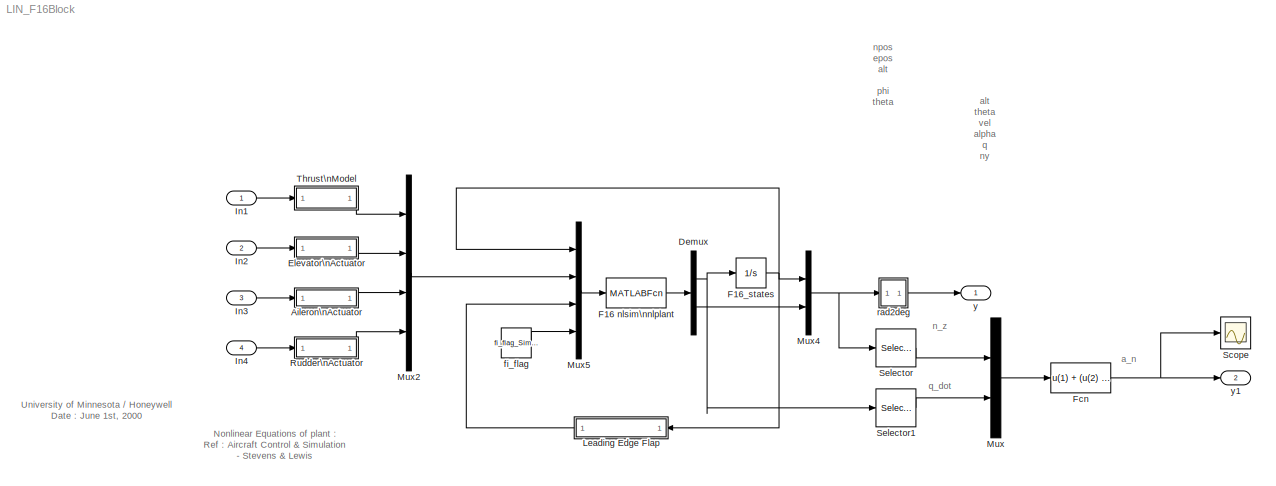
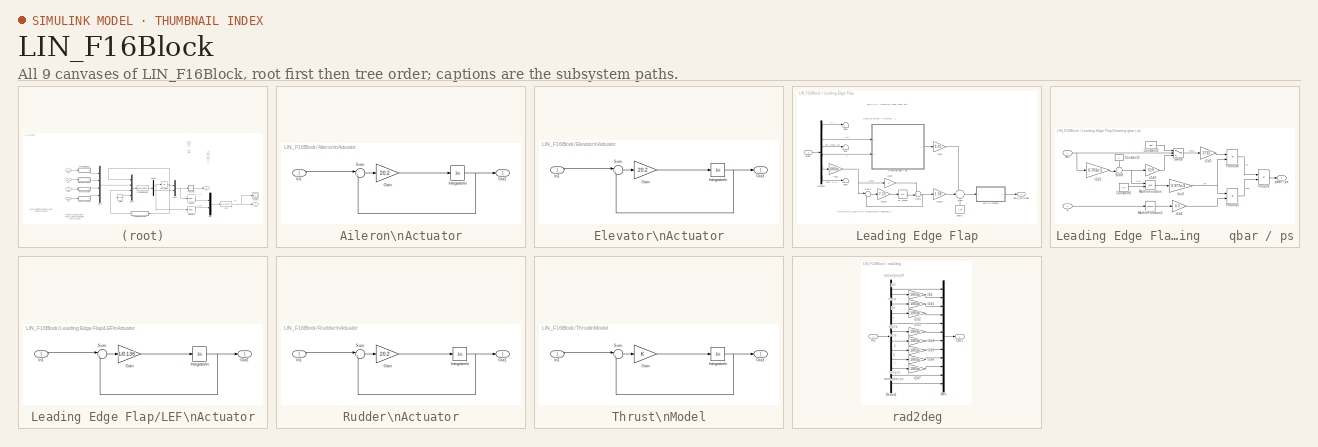
[diagram: thumbnail index - all 9 canvases of the model, root first then tree order]
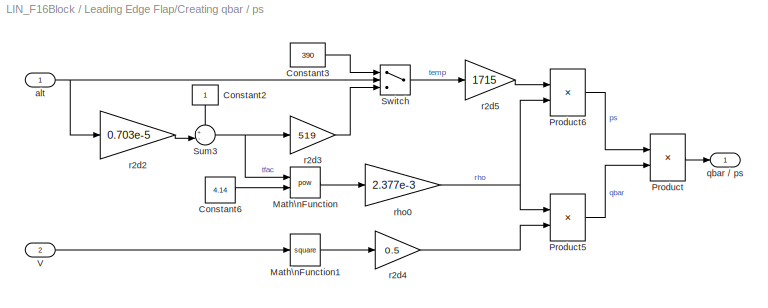
MODEL LIN_F16Block
KIND model
BLOCK [SubSystem] Aileron\nActuator
  AncestorBlock = F16_Actuator_Library/Aileron\nActuator
  Ports = [1, 1]
  RequestExecContextInheritance = off
  SID = 5
BLOCK [Gain] Aileron\nActuator/Gain
  Gain = 20.2
  SID = 5:2
BLOCK [Inport] Aileron\nActuator/In1
  IconDisplay = Port number
  SID = 5:1
BLOCK [Integrator] Aileron\nActuator/Integrator\n
  InitialCondition = trim_control_lin(2)
  LowerSaturationLimit = -21.5
  Ports = [1, 1]
  SID = 5:3
  UpperSaturationLimit = 21.5
BLOCK [Outport] Aileron\nActuator/Out1
  IconDisplay = Port number
  SID = 5:5
  VectorParamsAs1DForOutWhenUnconnected = off
BLOCK [Sum] Aileron\nActuator/Sum
  IconShape = round
  Inputs = |+-
  Ports = [2, 1]
  SID = 5:4
BLOCK [Demux] Demux
  Outputs = [12 6]
  Ports = [1, 2]
  SID = 6
BLOCK [SubSystem] Elevator\nActuator
  AncestorBlock = F16_Actuator_Library/Elevator\nActuator
  Ports = [1, 1]
  RequestExecContextInheritance = off
  SID = 7
BLOCK [Gain] Elevator\nActuator/Gain
  Gain = 20.2
  SID = 7:2
BLOCK [Inport] Elevator\nActuator/In1
  IconDisplay = Port number
  SID = 7:1
BLOCK [Integrator] Elevator\nActuator/Integrator\n
  InitialCondition = trim_control_lin(1)
  LowerSaturationLimit = -25
  Ports = [1, 1]
  SID = 7:3
  UpperSaturationLimit = 25
BLOCK [Outport] Elevator\nActuator/Out1
  IconDisplay = Port number
  SID = 7:5
  VectorParamsAs1DForOutWhenUnconnected = off
BLOCK [Sum] Elevator\nActuator/Sum
  IconShape = round
  Inputs = |+-
  Ports = [2, 1]
  SID = 7:4
BLOCK [MATLABFcn] F16 nlsim\nnlplant
  MATLABFcn = nlplant
  OutputDimensions = 18
  OutputSignalType = real
  Ports = [1, 1]
  SID = 8
BLOCK [Integrator] F16_states
  InitialCondition = trim_state_lin
  Ports = [1, 1]
  SID = 9
BLOCK [Fcn] Fcn
  Expr = u(1) + (u(2) * (x_a/g_d))
  SID = 91
BLOCK [Inport] In1
  IconDisplay = Port number
  SID = 1
BLOCK [Inport] In2
  IconDisplay = Port number
  Port = 2
  SID = 2
BLOCK [Inport] In3
  IconDisplay = Port number
  Port = 3
  SID = 3
BLOCK [Inport] In4
  IconDisplay = Port number
  Port = 4
  SID = 4
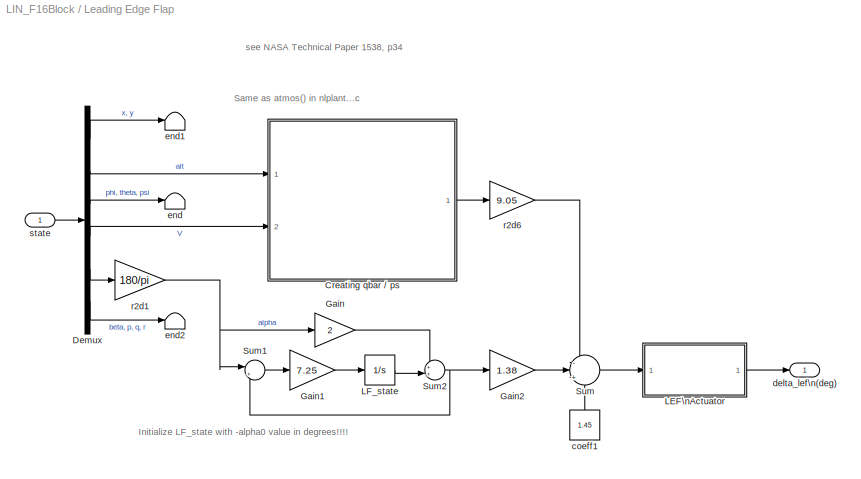
BLOCK [SubSystem] Leading Edge Flap
  Ports = [1, 1]
  RequestExecContextInheritance = off
  SID = 10
BLOCK [SubSystem] Leading Edge Flap/Creating    qbar // ps
  Ports = [2, 1]
  RequestExecContextInheritance = off
  SID = 12
BLOCK [Constant] Leading Edge Flap/Creating    qbar // ps/Constant2
  SID = 15
BLOCK [Constant] Leading Edge Flap/Creating    qbar // ps/Constant3
  SID = 16
  Value = 390
BLOCK [Constant] Leading Edge Flap/Creating    qbar // ps/Constant6
  SID = 17
  Value = 4.14
BLOCK [Math] Leading Edge Flap/Creating    qbar // ps/Math\nFunction
  Operator = pow
  Ports = [2, 1]
  SID = 18
BLOCK [Math] Leading Edge Flap/Creating    qbar // ps/Math\nFunction1
  Operator = square
  Ports = [1, 1]
  SID = 19
BLOCK [Product] Leading Edge Flap/Creating    qbar // ps/Product
  Inputs = /*
  Ports = [2, 1]
  RndMeth = Floor
  SID = 20
BLOCK [Product] Leading Edge Flap/Creating    qbar // ps/Product5
  Inputs = **
  Ports = [2, 1]
  RndMeth = Floor
  SID = 21
BLOCK [Product] Leading Edge Flap/Creating    qbar // ps/Product6
  Inputs = **
  Ports = [2, 1]
  RndMeth = Floor
  SID = 22
BLOCK [Sum] Leading Edge Flap/Creating    qbar // ps/Sum3
  IconShape = round
  Inputs = +-|
  Ports = [2, 1]
  SID = 23
BLOCK [Switch] Leading Edge Flap/Creating    qbar // ps/Switch
  SID = 24
  Threshold = 35000
BLOCK [Inport] Leading Edge Flap/Creating    qbar // ps/V
  IconDisplay = Port number
  Port = 2
  SID = 14
BLOCK [Inport] Leading Edge Flap/Creating    qbar // ps/alt
  IconDisplay = Port number
  SID = 13
BLOCK [Outport] Leading Edge Flap/Creating    qbar // ps/qbar // ps
  IconDisplay = Port number
  SID = 30
  VectorParamsAs1DForOutWhenUnconnected = off
BLOCK [Gain] Leading Edge Flap/Creating    qbar // ps/r2d2
  Gain = 0.703e-5
  SID = 25
BLOCK [Gain] Leading Edge Flap/Creating    qbar // ps/r2d3
  Gain = 519
  SID = 26
BLOCK [Gain] Leading Edge Flap/Creating    qbar // ps/r2d4
  Gain = 0.5
  SID = 27
BLOCK [Gain] Leading Edge Flap/Creating    qbar // ps/r2d5
  Gain = 1715
  SID = 28
BLOCK [Gain] Leading Edge Flap/Creating    qbar // ps/rho0
  Gain = 2.377e-3
  SID = 29
BLOCK [Demux] Leading Edge Flap/Demux
  Outputs = [2,1,3,1,1,4]
  Ports = [1, 6]
  SID = 31
BLOCK [Gain] Leading Edge Flap/Gain
  Gain = 2
  SID = 32
BLOCK [Gain] Leading Edge Flap/Gain1
  Gain = 7.25
  SID = 33
BLOCK [Gain] Leading Edge Flap/Gain2
  Gain = 1.38
  SID = 34
BLOCK [SubSystem] Leading Edge Flap/LEF\nActuator
  AncestorBlock = F16_Actuator_Library/Aileron\nActuator
  Ports = [1, 1]
  RequestExecContextInheritance = off
  SID = 35
BLOCK [Gain] Leading Edge Flap/LEF\nActuator/Gain
  Gain = 1/0.136
  SID = 35:2
BLOCK [Inport] Leading Edge Flap/LEF\nActuator/In1
  IconDisplay = Port number
  SID = 35:1
BLOCK [Integrator] Leading Edge Flap/LEF\nActuator/Integrator\n
  InitialCondition = dLEF
  LowerSaturationLimit = -21.5
  Ports = [1, 1]
  SID = 35:3
  UpperSaturationLimit = 21.5
BLOCK [Outport] Leading Edge Flap/LEF\nActuator/Out1
  IconDisplay = Port number
  SID = 35:5
  VectorParamsAs1DForOutWhenUnconnected = off
BLOCK [Sum] Leading Edge Flap/LEF\nActuator/Sum
  IconShape = round
  Inputs = |+-
  Ports = [2, 1]
  SID = 35:4
BLOCK [Integrator] Leading Edge Flap/LF_state
  InitialCondition = -trim_state_lin(8)*180/pi
  Ports = [1, 1]
  SID = 36
BLOCK [Sum] Leading Edge Flap/Sum
  IconShape = round
  Inputs = -|+|+
  Ports = [3, 1]
  SID = 37
BLOCK [Sum] Leading Edge Flap/Sum1
  IconShape = round
  Inputs = |+-
  Ports = [2, 1]
  SID = 38
BLOCK [Sum] Leading Edge Flap/Sum2
  IconShape = round
  Inputs = ++|
  Ports = [2, 1]
  SID = 39
BLOCK [Constant] Leading Edge Flap/coeff1
  SID = 40
  Value = 1.45
BLOCK [Outport] Leading Edge Flap/delta_lef\n(deg)
  IconDisplay = Port number
  SID = 46
  VectorParamsAs1DForOutWhenUnconnected = off
BLOCK [Terminator] Leading Edge Flap/end
  SID = 41
BLOCK [Terminator] Leading Edge Flap/end1
  SID = 42
BLOCK [Terminator] Leading Edge Flap/end2
  SID = 43
BLOCK [Gain] Leading Edge Flap/r2d1
  Gain = 180/pi
  SID = 44
BLOCK [Gain] Leading Edge Flap/r2d6
  Gain = 9.05
  SID = 45
BLOCK [Inport] Leading Edge Flap/state
  IconDisplay = Port number
  SID = 11
BLOCK [Mux] Mux
  DisplayOption = bar
  Inputs = 2
  Ports = [2, 1]
  SID = 88
BLOCK [Mux] Mux2
  DisplayOption = bar
  Ports = [4, 1]
  SID = 50
BLOCK [Mux] Mux4
  DisplayOption = bar
  Inputs = 2
  Ports = [2, 1]
  SID = 51
BLOCK [Mux] Mux5
  DisplayOption = bar
  Inputs = [12 4 1 1]
  Ports = [4, 1]
  SID = 52
BLOCK [SubSystem] Rudder\nActuator
  AncestorBlock = F16_Actuator_Library/Rudder\nActuator
  Ports = [1, 1]
  RequestExecContextInheritance = off
  SID = 53
BLOCK [Gain] Rudder\nActuator/Gain
  Gain = 20.2
  SID = 53:2
BLOCK [Inport] Rudder\nActuator/In1
  IconDisplay = Port number
  SID = 53:1
BLOCK [Integrator] Rudder\nActuator/Integrator\n
  InitialCondition = trim_control_lin(3)
  LowerSaturationLimit = -30
  Ports = [1, 1]
  SID = 53:3
  UpperSaturationLimit = 30
BLOCK [Outport] Rudder\nActuator/Out1
  IconDisplay = Port number
  SID = 53:5
  VectorParamsAs1DForOutWhenUnconnected = off
BLOCK [Sum] Rudder\nActuator/Sum
  IconShape = round
  Inputs = |+-
  Ports = [2, 1]
  SID = 53:4
BLOCK [Scope] Scope
  Floating = off
  NumInputPorts = 1
  Ports = [1]
  SID = 103
  ScopeSpecificationString = Simulink.scopes.TimeScopeBlockCfg('CurrentConfiguration', extmgr.ConfigurationSet(extmgr.Configuration('Core','General UI',true),extmgr.Configuration('Core','Source UI',true),extmgr.Configuration('Sources','WiredSimulink',true),extmgr.Configuration('Visuals','Time Domain',true),extmgr.Configuration('Tools','Plot Navigation',true),extmgr.Configuration('Tools','Measurements',true)),'Version','2019b'...<+1ch>
BLOCK [Selector] Selector
  IndexOptions = Index vector (dialog)
  Indices = [15]
  InputPortWidth = 18
  OutputSizes = 1
  Ports = [1, 1]
  SID = 85
BLOCK [Selector] Selector1
  IndexOptions = Index vector (dialog)
  Indices = [11]
  InputPortWidth = 12
  OutputSizes = 1
  Ports = [1, 1]
  SID = 87
BLOCK [SubSystem] Thrust\nModel
  AncestorBlock = F16_Actuator_Library/Thrust\nModel
  Ports = [1, 1]
  RequestExecContextInheritance = off
  SID = 54
BLOCK [Gain] Thrust\nModel/Gain
  SID = 54:2
BLOCK [Inport] Thrust\nModel/In1
  IconDisplay = Port number
  SID = 54:1
BLOCK [Integrator] Thrust\nModel/Integrator\n
  InitialCondition = trim_thrust_lin
  LowerSaturationLimit = -30
  Ports = [1, 1]
  SID = 54:3
  UpperSaturationLimit = 30
BLOCK [Outport] Thrust\nModel/Out1
  IconDisplay = Port number
  SID = 54:5
  VectorParamsAs1DForOutWhenUnconnected = off
BLOCK [Sum] Thrust\nModel/Sum
  IconShape = round
  Inputs = |+-
  Ports = [2, 1]
  SID = 54:4
BLOCK [Constant] fi_flag
  SID = 55
  Value = fi_flag_Simulink
BLOCK [SubSystem] rad2deg
  Ports = [1, 1]
  RequestExecContextInheritance = off
  SID = 56
BLOCK [Demux] rad2deg/Demux1
  Outputs = [3 1 1 1 1 1 1 1 1 1 3 3]
  Ports = [1, 12]
  SID = 58
BLOCK [Inport] rad2deg/In1
  IconDisplay = Port number
  SID = 57
BLOCK [Mux] rad2deg/Mux
  DisplayOption = bar
  Inputs = [3 1 1 1 1 1 1 1 1 1 3 3]
  Ports = [12, 1]
  SID = 59
BLOCK [Outport] rad2deg/Out1
  IconDisplay = Port number
  SID = 68
  VectorParamsAs1DForOutWhenUnconnected = off
BLOCK [Gain] rad2deg/r2d
  Gain = 180/pi
  SID = 60
BLOCK [Gain] rad2deg/r2d1
  Gain = 180/pi
  SID = 61
BLOCK [Gain] rad2deg/r2d2
  Gain = 180/pi
  SID = 62
BLOCK [Gain] rad2deg/r2d3
  Gain = 180/pi
  SID = 63
BLOCK [Gain] rad2deg/r2d4
  Gain = 180/pi
  SID = 64
BLOCK [Gain] rad2deg/r2d5
  Gain = 180/pi
  SID = 65
BLOCK [Gain] rad2deg/r2d6
  Gain = 180/pi
  SID = 66
BLOCK [Gain] rad2deg/r2d7
  Gain = 180/pi
  SID = 67
BLOCK [Outport] y
  IconDisplay = Port number
  SID = 81
  VectorParamsAs1DForOutWhenUnconnected = off
BLOCK [Outport] y1
  IconDisplay = Port number
  Port = 2
  SID = 104
  VectorParamsAs1DForOutWhenUnconnected = off
ANNOTATION (root): Nonlinear Equations of plant :\nRef : Aircraft Control & Simulation\n- Stevens & Lewis
ANNOTATION (root): University of Minnesota / Honeywell\nDate : June 1st, 2000
ANNOTATION (root): a_n
ANNOTATION (root): alt\ntheta\nvel\nalpha\nq\nny
ANNOTATION (root): n_z
ANNOTATION (root): npos\nepos\nalt\n\nphi\ntheta\npsi\n\nvel\nalpha\nbeta\n\np\nq\nr\n\nnx\nny\nnz\n\nmach\nqbar\nps\n
ANNOTATION (root): q_dot
ANNOTATION Leading Edge Flap: Initialize LF_state with -alpha0 value in degrees!!!!
ANNOTATION Leading Edge Flap: Same as atmos() in nlplant...c
ANNOTATION Leading Edge Flap: see NASA Technical Paper 1538, p34
ANNOTATION rad2deg: alpha
ANNOTATION rad2deg: beta
ANNOTATION rad2deg: mach,qbar,ps
ANNOTATION rad2deg: npos,epos,alt
ANNOTATION rad2deg: nx,ny,nz
ANNOTATION rad2deg: p
ANNOTATION rad2deg: phi
ANNOTATION rad2deg: psi
ANNOTATION rad2deg: q
ANNOTATION rad2deg: r
ANNOTATION rad2deg: theta
ANNOTATION rad2deg: v
LINE Aileron\nActuator/Gain:1 -> Aileron\nActuator/Integrator\n:1
LINE Aileron\nActuator/In1:1 -> Aileron\nActuator/Sum:1
NET Aileron\nActuator/Integrator\n:1 -> Aileron\nActuator/Out1:1, Aileron\nActuator/Sum:2
LINE Aileron\nActuator/Sum:1 -> Aileron\nActuator/Gain:1
LINE Aileron\nActuator:1 -> Mux2:3
NET Demux:1 -> F16_states:1, Selector1:1
LINE Demux:2 -> Mux4:2
LINE Elevator\nActuator/Gain:1 -> Elevator\nActuator/Integrator\n:1
LINE Elevator\nActuator/In1:1 -> Elevator\nActuator/Sum:1
NET Elevator\nActuator/Integrator\n:1 -> Elevator\nActuator/Out1:1, Elevator\nActuator/Sum:2
LINE Elevator\nActuator/Sum:1 -> Elevator\nActuator/Gain:1
LINE Elevator\nActuator:1 -> Mux2:2
LINE F16 nlsim\nnlplant:1 -> Demux:1
NET F16_states:1 -> Leading Edge Flap:1, Mux4:1, Mux5:1
NET Fcn:1 -> Scope:1, y1:1
LINE In1:1 -> Thrust\nModel:1
LINE In2:1 -> Elevator\nActuator:1
LINE In3:1 -> Aileron\nActuator:1
LINE In4:1 -> Rudder\nActuator:1
LINE Leading Edge Flap/Creating    qbar // ps/Constant2:1 -> Leading Edge Flap/Creating    qbar // ps/Sum3:1
LINE Leading Edge Flap/Creating    qbar // ps/Constant3:1 -> Leading Edge Flap/Creating    qbar // ps/Switch:1
LINE Leading Edge Flap/Creating    qbar // ps/Constant6:1 -> Leading Edge Flap/Creating    qbar // ps/Math\nFunction:2
LINE Leading Edge Flap/Creating    qbar // ps/Math\nFunction1:1 -> Leading Edge Flap/Creating    qbar // ps/r2d4:1
LINE Leading Edge Flap/Creating    qbar // ps/Math\nFunction:1 -> Leading Edge Flap/Creating    qbar // ps/rho0:1
LINE Leading Edge Flap/Creating    qbar // ps/Product5:1 -> Leading Edge Flap/Creating    qbar // ps/Product:2
LINE Leading Edge Flap/Creating    qbar // ps/Product6:1 -> Leading Edge Flap/Creating    qbar // ps/Product:1
LINE Leading Edge Flap/Creating    qbar // ps/Product:1 -> Leading Edge Flap/Creating    qbar // ps/qbar // ps:1
NET Leading Edge Flap/Creating    qbar // ps/Sum3:1 -> Leading Edge Flap/Creating    qbar // ps/Math\nFunction:1, Leading Edge Flap/Creating    qbar // ps/r2d3:1
LINE Leading Edge Flap/Creating    qbar // ps/Switch:1 -> Leading Edge Flap/Creating    qbar // ps/r2d5:1
LINE Leading Edge Flap/Creating    qbar // ps/V:1 -> Leading Edge Flap/Creating    qbar // ps/Math\nFunction1:1
NET Leading Edge Flap/Creating    qbar // ps/alt:1 -> Leading Edge Flap/Creating    qbar // ps/Switch:2, Leading Edge Flap/Creating    qbar // ps/r2d2:1
LINE Leading Edge Flap/Creating    qbar // ps/r2d2:1 -> Leading Edge Flap/Creating    qbar // ps/Sum3:2
LINE Leading Edge Flap/Creating    qbar // ps/r2d3:1 -> Leading Edge Flap/Creating    qbar // ps/Switch:3
LINE Leading Edge Flap/Creating    qbar // ps/r2d4:1 -> Leading Edge Flap/Creating    qbar // ps/Product5:2
LINE Leading Edge Flap/Creating    qbar // ps/r2d5:1 -> Leading Edge Flap/Creating    qbar // ps/Product6:1
NET Leading Edge Flap/Creating    qbar // ps/rho0:1 -> Leading Edge Flap/Creating    qbar // ps/Product5:1, Leading Edge Flap/Creating    qbar // ps/Product6:2
LINE Leading Edge Flap/Creating    qbar // ps:1 -> Leading Edge Flap/r2d6:1
LINE Leading Edge Flap/Demux:1 -> Leading Edge Flap/end1:1
LINE Leading Edge Flap/Demux:2 -> Leading Edge Flap/Creating    qbar // ps:1
LINE Leading Edge Flap/Demux:3 -> Leading Edge Flap/end:1
LINE Leading Edge Flap/Demux:4 -> Leading Edge Flap/Creating    qbar // ps:2
LINE Leading Edge Flap/Demux:5 -> Leading Edge Flap/r2d1:1
LINE Leading Edge Flap/Demux:6 -> Leading Edge Flap/end2:1
LINE Leading Edge Flap/Gain1:1 -> Leading Edge Flap/LF_state:1
LINE Leading Edge Flap/Gain2:1 -> Leading Edge Flap/Sum:2
LINE Leading Edge Flap/Gain:1 -> Leading Edge Flap/Sum2:1
LINE Leading Edge Flap/LEF\nActuator/Gain:1 -> Leading Edge Flap/LEF\nActuator/Integrator\n:1
LINE Leading Edge Flap/LEF\nActuator/In1:1 -> Leading Edge Flap/LEF\nActuator/Sum:1
NET Leading Edge Flap/LEF\nActuator/Integrator\n:1 -> Leading Edge Flap/LEF\nActuator/Out1:1, Leading Edge Flap/LEF\nActuator/Sum:2
LINE Leading Edge Flap/LEF\nActuator/Sum:1 -> Leading Edge Flap/LEF\nActuator/Gain:1
LINE Leading Edge Flap/LEF\nActuator:1 -> Leading Edge Flap/delta_lef\n(deg):1
LINE Leading Edge Flap/LF_state:1 -> Leading Edge Flap/Sum2:2
LINE Leading Edge Flap/Sum1:1 -> Leading Edge Flap/Gain1:1
NET Leading Edge Flap/Sum2:1 -> Leading Edge Flap/Gain2:1, Leading Edge Flap/Sum1:2
LINE Leading Edge Flap/Sum:1 -> Leading Edge Flap/LEF\nActuator:1
LINE Leading Edge Flap/coeff1:1 -> Leading Edge Flap/Sum:3
NET Leading Edge Flap/r2d1:1 -> Leading Edge Flap/Gain:1, Leading Edge Flap/Sum1:1
LINE Leading Edge Flap/r2d6:1 -> Leading Edge Flap/Sum:1
LINE Leading Edge Flap/state:1 -> Leading Edge Flap/Demux:1
LINE Leading Edge Flap:1 -> Mux5:3
LINE Mux2:1 -> Mux5:2
NET Mux4:1 -> Selector:1, rad2deg:1
LINE Mux5:1 -> F16 nlsim\nnlplant:1
LINE Mux:1 -> Fcn:1
LINE Rudder\nActuator/Gain:1 -> Rudder\nActuator/Integrator\n:1
LINE Rudder\nActuator/In1:1 -> Rudder\nActuator/Sum:1
NET Rudder\nActuator/Integrator\n:1 -> Rudder\nActuator/Out1:1, Rudder\nActuator/Sum:2
LINE Rudder\nActuator/Sum:1 -> Rudder\nActuator/Gain:1
LINE Rudder\nActuator:1 -> Mux2:4
LINE Selector1:1 -> Mux:2
LINE Selector:1 -> Mux:1
LINE Thrust\nModel/Gain:1 -> Thrust\nModel/Integrator\n:1
LINE Thrust\nModel/In1:1 -> Thrust\nModel/Sum:1
NET Thrust\nModel/Integrator\n:1 -> Thrust\nModel/Out1:1, Thrust\nModel/Sum:2
LINE Thrust\nModel/Sum:1 -> Thrust\nModel/Gain:1
LINE Thrust\nModel:1 -> Mux2:1
LINE fi_flag:1 -> Mux5:4
LINE rad2deg/Demux1:1 -> rad2deg/Mux:1
LINE rad2deg/Demux1:10 -> rad2deg/r2d7:1
LINE rad2deg/Demux1:11 -> rad2deg/Mux:11
LINE rad2deg/Demux1:12 -> rad2deg/Mux:12
LINE rad2deg/Demux1:2 -> rad2deg/r2d:1
LINE rad2deg/Demux1:3 -> rad2deg/r2d1:1
LINE rad2deg/Demux1:4 -> rad2deg/r2d2:1
LINE rad2deg/Demux1:5 -> rad2deg/Mux:5
LINE rad2deg/Demux1:6 -> rad2deg/r2d3:1
LINE rad2deg/Demux1:7 -> rad2deg/r2d4:1
LINE rad2deg/Demux1:8 -> rad2deg/r2d5:1
LINE rad2deg/Demux1:9 -> rad2deg/r2d6:1
LINE rad2deg/In1:1 -> rad2deg/Demux1:1
LINE rad2deg/Mux:1 -> rad2deg/Out1:1
LINE rad2deg/r2d1:1 -> rad2deg/Mux:3
LINE rad2deg/r2d2:1 -> rad2deg/Mux:4
LINE rad2deg/r2d3:1 -> rad2deg/Mux:6
LINE rad2deg/r2d4:1 -> rad2deg/Mux:7
LINE rad2deg/r2d5:1 -> rad2deg/Mux:8
LINE rad2deg/r2d6:1 -> rad2deg/Mux:9
LINE rad2deg/r2d7:1 -> rad2deg/Mux:10
LINE rad2deg/r2d:1 -> rad2deg/Mux:2
LINE rad2deg:1 -> y:1
note: NET lines group one-source signal fan-out (src -> all destinations, sorted); 1:1 wires keep LINE
